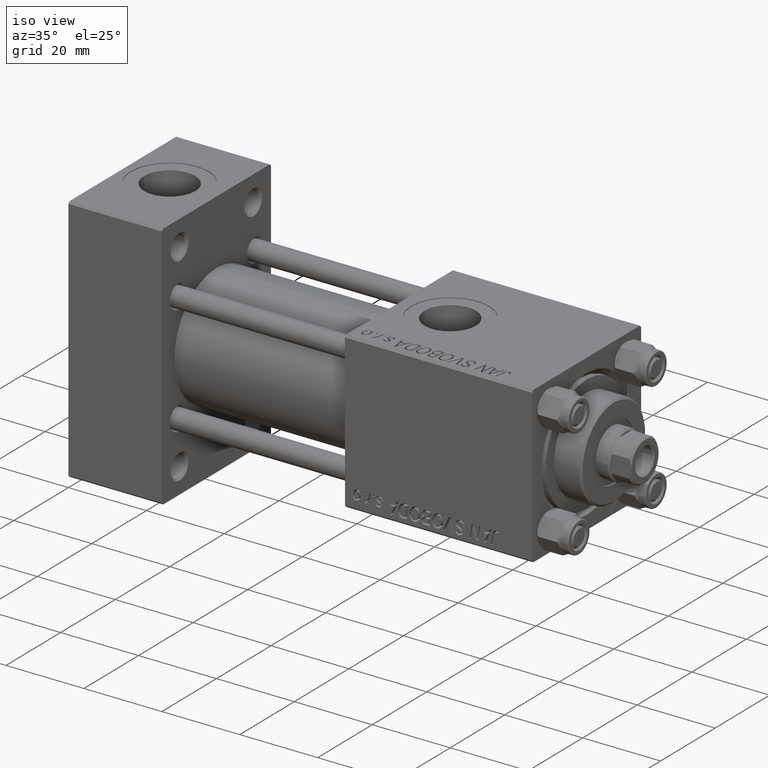
[diagram: clean part render]
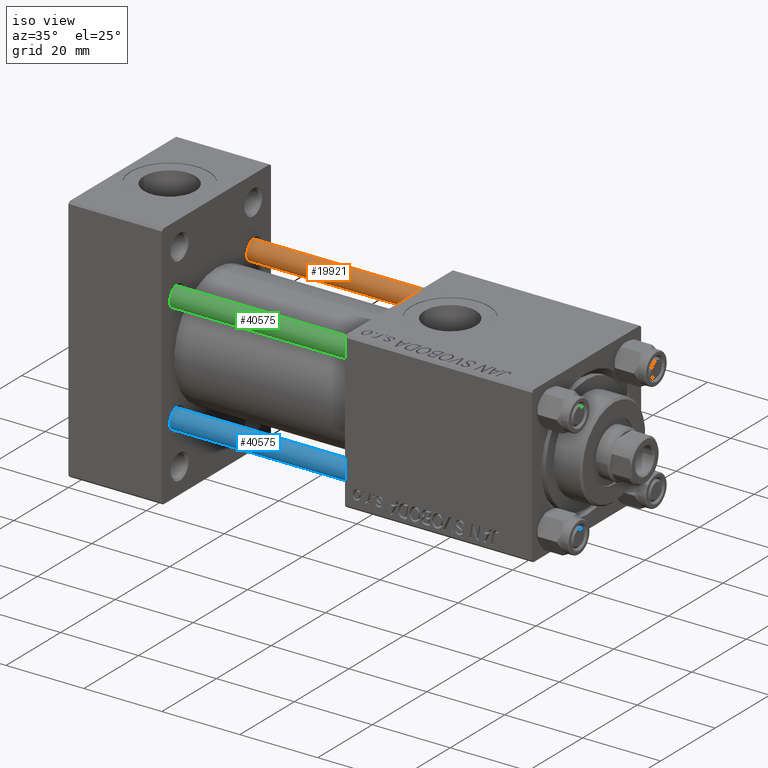
[diagram: same view with three faces highlighted in distinct colors, each labeled with its STEP entity id]
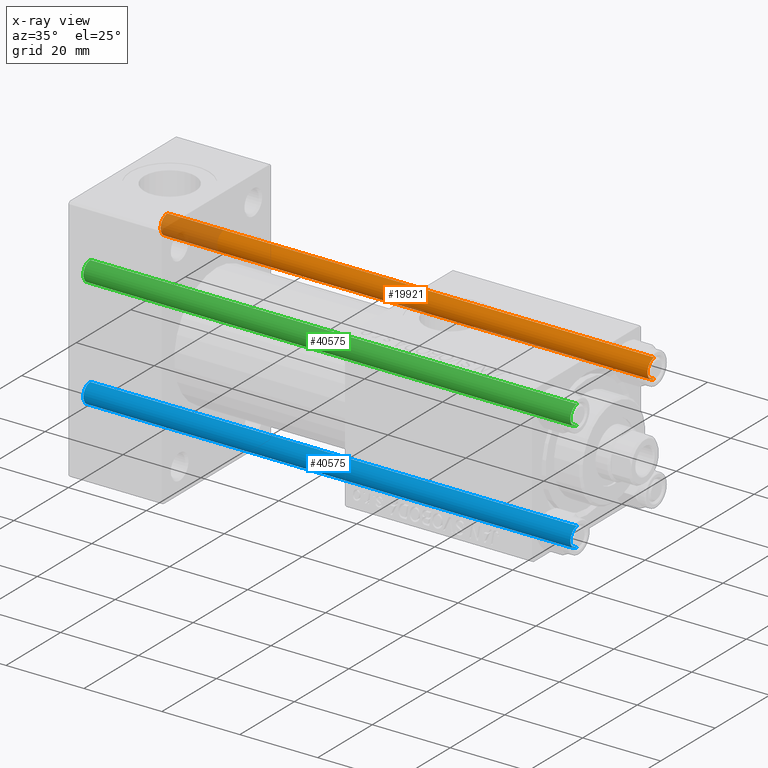
[diagram: x-ray of the same camera — body ghosted, the three highlighted faces saturated]
A machine part, iso view with three faces highlighted in distinct colors.
The next image is the same camera in x-ray (body ghosted, the three faces saturated) — at least one of them is partly hidden behind the body in this view.
Their STEP definitions:

[orange] entity #19921 — the highlighted cylindrical surface (edge-blend (fillet) strip) has radius 2.5 mm, axis along (1, 0, 0).
#468 = EDGE_LOOP ( 'NONE', ( #8920, #4255, #33360, #16117 ) ) ;
#1068 = CARTESIAN_POINT ( 'NONE',  ( 2.500000000000000000, 3.061616997868383141E-16, 125.5000000000000568 ) ) ;
#1101 = DIRECTION ( 'NONE',  ( 1.000000000000000000, 0.000000000000000000, 0.000000000000000000 ) ) ;
#1241 = CYLINDRICAL_SURFACE ( 'NONE', #47258, 2.500000000000000000 ) ;
#1966 = CARTESIAN_POINT ( 'NONE',  ( -2.500000000000000000, 0.000000000000000000, 0.5000000000000004441 ) ) ;
#4255 = ORIENTED_EDGE ( 'NONE', *, *, #7485, .T. ) ;
#4661 = DIRECTION ( 'NONE',  ( -0.000000000000000000, -0.000000000000000000, 1.000000000000000000 ) ) ;
#7485 = EDGE_CURVE ( 'NONE', #47096, #33046, #42087, .T. ) ;
#7711 = LINE ( 'NONE', #47746, #37490 ) ;
#8920 = ORIENTED_EDGE ( 'NONE', *, *, #10615, .T. ) ;
#10395 = DIRECTION ( 'NONE',  ( 0.000000000000000000, 0.000000000000000000, -1.000000000000000000 ) ) ;
#10615 = EDGE_CURVE ( 'NONE', #12904, #47096, #18254, .T. ) ;
#11303 = CARTESIAN_POINT ( 'NONE',  ( 2.500000000000000000, 3.061616997868383141E-16, 0.5000000000000004441 ) ) ;
#12013 = VERTEX_POINT ( 'NONE', #1966 ) ;
#12904 = VERTEX_POINT ( 'NONE', #41826 ) ;
#16117 = ORIENTED_EDGE ( 'NONE', *, *, #17866, .F. ) ;
#17866 = EDGE_CURVE ( 'NONE', #12904, #12013, #7711, .T. ) ;
#18254 = CIRCLE ( 'NONE', #19084, 2.500000000000000000 ) ;
#19084 = AXIS2_PLACEMENT_3D ( 'NONE', #30093, #10395, #22254 ) ;
#19921 = ADVANCED_FACE ( 'NONE', ( #21191 ), #1241, .T. ) ;
#20937 = DIRECTION ( 'NONE',  ( -1.000000000000000000, 0.000000000000000000, 0.000000000000000000 ) ) ;
#21191 = FACE_OUTER_BOUND ( 'NONE', #468, .T. ) ;
#22254 = DIRECTION ( 'NONE',  ( 1.000000000000000000, 0.000000000000000000, 0.000000000000000000 ) ) ;
#23839 = CARTESIAN_POINT ( 'NONE',  ( 0.000000000000000000, 0.000000000000000000, 0.5000000000000004441 ) ) ;
#29017 = AXIS2_PLACEMENT_3D ( 'NONE', #23839, #4661, #1101 ) ;
#29843 = CIRCLE ( 'NONE', #29017, 2.500000000000000000 ) ;
#30093 = CARTESIAN_POINT ( 'NONE',  ( 0.000000000000000000, 0.000000000000000000, 125.5000000000000568 ) ) ;
#30239 = CARTESIAN_POINT ( 'NONE',  ( 2.500000000000000000, 3.061616997868383141E-16, 126.0000000000000000 ) ) ;
#30983 = DIRECTION ( 'NONE',  ( -0.000000000000000000, -0.000000000000000000, -1.000000000000000000 ) ) ;
#32272 = EDGE_CURVE ( 'NONE', #33046, #12013, #29843, .T. ) ;
#32877 = DIRECTION ( 'NONE',  ( -0.000000000000000000, -0.000000000000000000, -1.000000000000000000 ) ) ;
#33046 = VERTEX_POINT ( 'NONE', #11303 ) ;
#33360 = ORIENTED_EDGE ( 'NONE', *, *, #32272, .T. ) ;
#36085 = CARTESIAN_POINT ( 'NONE',  ( 0.000000000000000000, 0.000000000000000000, 126.0000000000000000 ) ) ;
#36840 = DIRECTION ( 'NONE',  ( -0.000000000000000000, -0.000000000000000000, -1.000000000000000000 ) ) ;
#37490 = VECTOR ( 'NONE', #32877, 1000.000000000000000 ) ;
#41826 = CARTESIAN_POINT ( 'NONE',  ( -2.500000000000000000, 0.000000000000000000, 125.5000000000000568 ) ) ;
#42087 = LINE ( 'NONE', #30239, #44759 ) ;
#44759 = VECTOR ( 'NONE', #30983, 1000.000000000000000 ) ;
#47096 = VERTEX_POINT ( 'NONE', #1068 ) ;
#47258 = AXIS2_PLACEMENT_3D ( 'NONE', #36085, #36840, #20937 ) ;
#47746 = CARTESIAN_POINT ( 'NONE',  ( -2.500000000000000000, 0.000000000000000000, 126.0000000000000000 ) ) ;

[blue] entity #40575 — the highlighted cylindrical surface (edge-blend (fillet) strip) has radius 2.5 mm, axis along (1, -0, -0).
#1068 = CARTESIAN_POINT ( 'NONE',  ( 2.500000000000000000, 3.061616997868383141E-16, 125.5000000000000568 ) ) ;
#1966 = CARTESIAN_POINT ( 'NONE',  ( -2.500000000000000000, 0.000000000000000000, 0.5000000000000004441 ) ) ;
#2145 = FACE_OUTER_BOUND ( 'NONE', #4653, .T. ) ;
#4653 = EDGE_LOOP ( 'NONE', ( #5520, #7910, #14871, #16376 ) ) ;
#4889 = AXIS2_PLACEMENT_3D ( 'NONE', #29965, #45339, #37276 ) ;
#5520 = ORIENTED_EDGE ( 'NONE', *, *, #7485, .F. ) ;
#7485 = EDGE_CURVE ( 'NONE', #47096, #33046, #42087, .T. ) ;
#7711 = LINE ( 'NONE', #47746, #37490 ) ;
#7910 = ORIENTED_EDGE ( 'NONE', *, *, #20350, .T. ) ;
#9137 = CARTESIAN_POINT ( 'NONE',  ( 0.000000000000000000, 0.000000000000000000, 125.5000000000000568 ) ) ;
#10185 = AXIS2_PLACEMENT_3D ( 'NONE', #9137, #12412, #16460 ) ;
#11303 = CARTESIAN_POINT ( 'NONE',  ( 2.500000000000000000, 3.061616997868383141E-16, 0.5000000000000004441 ) ) ;
#12013 = VERTEX_POINT ( 'NONE', #1966 ) ;
#12412 = DIRECTION ( 'NONE',  ( 0.000000000000000000, 0.000000000000000000, -1.000000000000000000 ) ) ;
#12904 = VERTEX_POINT ( 'NONE', #41826 ) ;
#14871 = ORIENTED_EDGE ( 'NONE', *, *, #17866, .T. ) ;
#16376 = ORIENTED_EDGE ( 'NONE', *, *, #37552, .T. ) ;
#16460 = DIRECTION ( 'NONE',  ( 1.000000000000000000, 0.000000000000000000, 0.000000000000000000 ) ) ;
#17866 = EDGE_CURVE ( 'NONE', #12904, #12013, #7711, .T. ) ;
#20350 = EDGE_CURVE ( 'NONE', #47096, #12904, #22298, .T. ) ;
#22298 = CIRCLE ( 'NONE', #10185, 2.500000000000000000 ) ;
#28908 = DIRECTION ( 'NONE',  ( -0.000000000000000000, -0.000000000000000000, -1.000000000000000000 ) ) ;
#29965 = CARTESIAN_POINT ( 'NONE',  ( 0.000000000000000000, 0.000000000000000000, 0.5000000000000004441 ) ) ;
#30239 = CARTESIAN_POINT ( 'NONE',  ( 2.500000000000000000, 3.061616997868383141E-16, 126.0000000000000000 ) ) ;
#30983 = DIRECTION ( 'NONE',  ( -0.000000000000000000, -0.000000000000000000, -1.000000000000000000 ) ) ;
#32691 = CYLINDRICAL_SURFACE ( 'NONE', #49295, 2.500000000000000000 ) ;
#32877 = DIRECTION ( 'NONE',  ( -0.000000000000000000, -0.000000000000000000, -1.000000000000000000 ) ) ;
#33046 = VERTEX_POINT ( 'NONE', #11303 ) ;
#36343 = CIRCLE ( 'NONE', #4889, 2.500000000000000000 ) ;
#37209 = CARTESIAN_POINT ( 'NONE',  ( 0.000000000000000000, 0.000000000000000000, 126.0000000000000000 ) ) ;
#37276 = DIRECTION ( 'NONE',  ( 1.000000000000000000, 0.000000000000000000, 0.000000000000000000 ) ) ;
#37490 = VECTOR ( 'NONE', #32877, 1000.000000000000000 ) ;
#37552 = EDGE_CURVE ( 'NONE', #12013, #33046, #36343, .T. ) ;
#40575 = ADVANCED_FACE ( 'NONE', ( #2145 ), #32691, .T. ) ;
#41826 = CARTESIAN_POINT ( 'NONE',  ( -2.500000000000000000, 0.000000000000000000, 125.5000000000000568 ) ) ;
#42087 = LINE ( 'NONE', #30239, #44759 ) ;
#44759 = VECTOR ( 'NONE', #30983, 1000.000000000000000 ) ;
#45029 = DIRECTION ( 'NONE',  ( -1.000000000000000000, 0.000000000000000000, 0.000000000000000000 ) ) ;
#45339 = DIRECTION ( 'NONE',  ( -0.000000000000000000, -0.000000000000000000, 1.000000000000000000 ) ) ;
#47096 = VERTEX_POINT ( 'NONE', #1068 ) ;
#47746 = CARTESIAN_POINT ( 'NONE',  ( -2.500000000000000000, 0.000000000000000000, 126.0000000000000000 ) ) ;
#49295 = AXIS2_PLACEMENT_3D ( 'NONE', #37209, #28908, #45029 ) ;

[green] entity #40575 — the highlighted cylindrical surface (edge-blend (fillet) strip) has radius 2.5 mm, axis along (-1, 0, -0).
#1068 = CARTESIAN_POINT ( 'NONE',  ( 2.500000000000000000, 3.061616997868383141E-16, 125.5000000000000568 ) ) ;
#1966 = CARTESIAN_POINT ( 'NONE',  ( -2.500000000000000000, 0.000000000000000000, 0.5000000000000004441 ) ) ;
#2145 = FACE_OUTER_BOUND ( 'NONE', #4653, .T. ) ;
#4653 = EDGE_LOOP ( 'NONE', ( #5520, #7910, #14871, #16376 ) ) ;
#4889 = AXIS2_PLACEMENT_3D ( 'NONE', #29965, #45339, #37276 ) ;
#5520 = ORIENTED_EDGE ( 'NONE', *, *, #7485, .F. ) ;
#7485 = EDGE_CURVE ( 'NONE', #47096, #33046, #42087, .T. ) ;
#7711 = LINE ( 'NONE', #47746, #37490 ) ;
#7910 = ORIENTED_EDGE ( 'NONE', *, *, #20350, .T. ) ;
#9137 = CARTESIAN_POINT ( 'NONE',  ( 0.000000000000000000, 0.000000000000000000, 125.5000000000000568 ) ) ;
#10185 = AXIS2_PLACEMENT_3D ( 'NONE', #9137, #12412, #16460 ) ;
#11303 = CARTESIAN_POINT ( 'NONE',  ( 2.500000000000000000, 3.061616997868383141E-16, 0.5000000000000004441 ) ) ;
#12013 = VERTEX_POINT ( 'NONE', #1966 ) ;
#12412 = DIRECTION ( 'NONE',  ( 0.000000000000000000, 0.000000000000000000, -1.000000000000000000 ) ) ;
#12904 = VERTEX_POINT ( 'NONE', #41826 ) ;
#14871 = ORIENTED_EDGE ( 'NONE', *, *, #17866, .T. ) ;
#16376 = ORIENTED_EDGE ( 'NONE', *, *, #37552, .T. ) ;
#16460 = DIRECTION ( 'NONE',  ( 1.000000000000000000, 0.000000000000000000, 0.000000000000000000 ) ) ;
#17866 = EDGE_CURVE ( 'NONE', #12904, #12013, #7711, .T. ) ;
#20350 = EDGE_CURVE ( 'NONE', #47096, #12904, #22298, .T. ) ;
#22298 = CIRCLE ( 'NONE', #10185, 2.500000000000000000 ) ;
#28908 = DIRECTION ( 'NONE',  ( -0.000000000000000000, -0.000000000000000000, -1.000000000000000000 ) ) ;
#29965 = CARTESIAN_POINT ( 'NONE',  ( 0.000000000000000000, 0.000000000000000000, 0.5000000000000004441 ) ) ;
#30239 = CARTESIAN_POINT ( 'NONE',  ( 2.500000000000000000, 3.061616997868383141E-16, 126.0000000000000000 ) ) ;
#30983 = DIRECTION ( 'NONE',  ( -0.000000000000000000, -0.000000000000000000, -1.000000000000000000 ) ) ;
#32691 = CYLINDRICAL_SURFACE ( 'NONE', #49295, 2.500000000000000000 ) ;
#32877 = DIRECTION ( 'NONE',  ( -0.000000000000000000, -0.000000000000000000, -1.000000000000000000 ) ) ;
#33046 = VERTEX_POINT ( 'NONE', #11303 ) ;
#36343 = CIRCLE ( 'NONE', #4889, 2.500000000000000000 ) ;
#37209 = CARTESIAN_POINT ( 'NONE',  ( 0.000000000000000000, 0.000000000000000000, 126.0000000000000000 ) ) ;
#37276 = DIRECTION ( 'NONE',  ( 1.000000000000000000, 0.000000000000000000, 0.000000000000000000 ) ) ;
#37490 = VECTOR ( 'NONE', #32877, 1000.000000000000000 ) ;
#37552 = EDGE_CURVE ( 'NONE', #12013, #33046, #36343, .T. ) ;
#40575 = ADVANCED_FACE ( 'NONE', ( #2145 ), #32691, .T. ) ;
#41826 = CARTESIAN_POINT ( 'NONE',  ( -2.500000000000000000, 0.000000000000000000, 125.5000000000000568 ) ) ;
#42087 = LINE ( 'NONE', #30239, #44759 ) ;
#44759 = VECTOR ( 'NONE', #30983, 1000.000000000000000 ) ;
#45029 = DIRECTION ( 'NONE',  ( -1.000000000000000000, 0.000000000000000000, 0.000000000000000000 ) ) ;
#45339 = DIRECTION ( 'NONE',  ( -0.000000000000000000, -0.000000000000000000, 1.000000000000000000 ) ) ;
#47096 = VERTEX_POINT ( 'NONE', #1068 ) ;
#47746 = CARTESIAN_POINT ( 'NONE',  ( -2.500000000000000000, 0.000000000000000000, 126.0000000000000000 ) ) ;
#49295 = AXIS2_PLACEMENT_3D ( 'NONE', #37209, #28908, #45029 ) ;